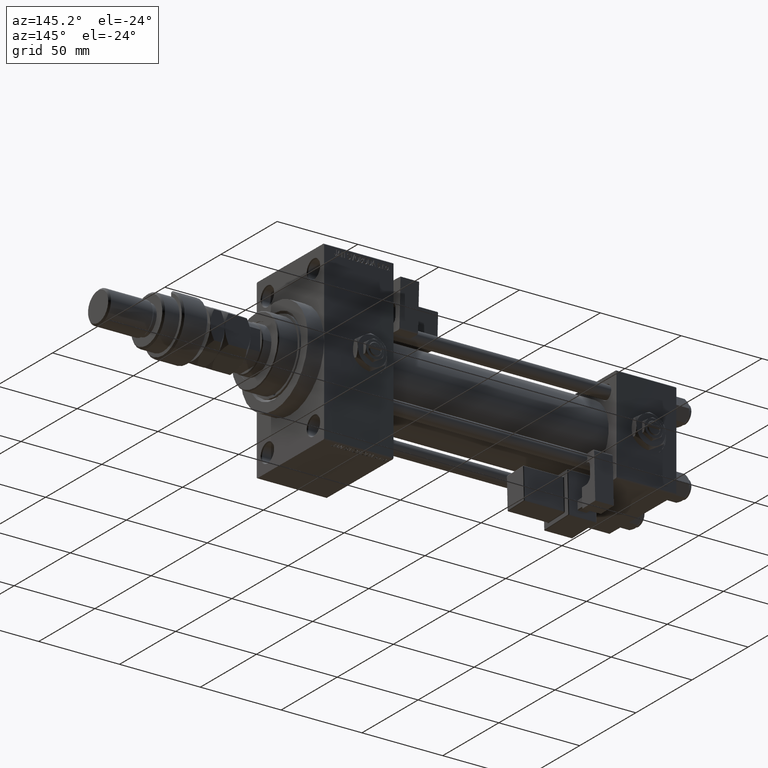
[diagram: clean part render]
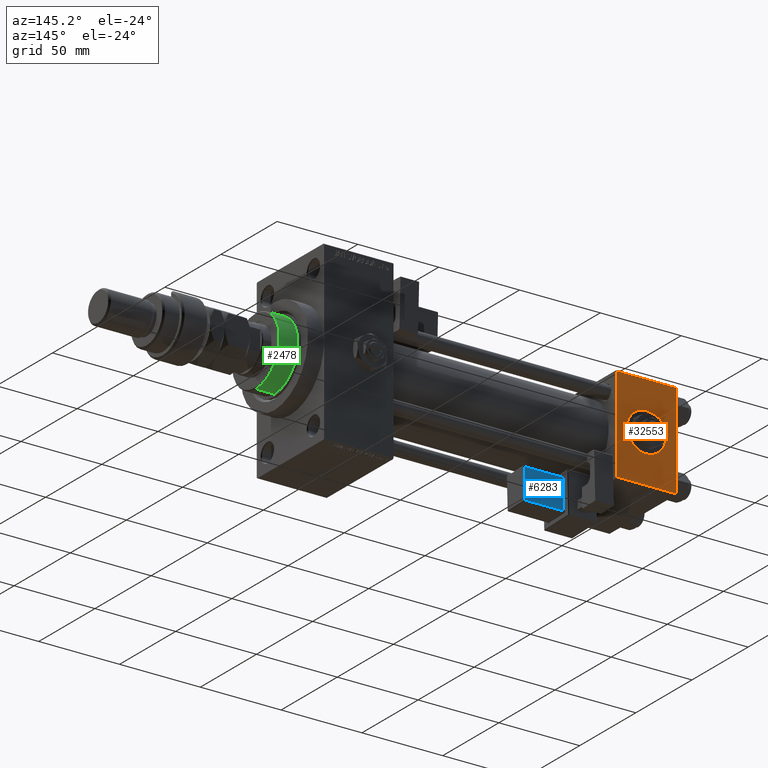
[diagram: same view with three faces highlighted in distinct colors, each labeled with its STEP entity id]
A machine part, auxiliary view with three faces highlighted in distinct colors.
Their STEP definitions:

[orange] entity #32553 — the highlighted planar face has unit normal (0, 1, 0).
#98 = DIRECTION ( 'NONE',  ( 0.000000000000000000, 1.000000000000000000, 0.000000000000000000 ) ) ;
#560 = VECTOR ( 'NONE', #51329, 1000.000000000000000 ) ;
#1037 = LINE ( 'NONE', #34199, #560 ) ;
#1789 = DIRECTION ( 'NONE',  ( 0.000000000000000000, 0.000000000000000000, -1.000000000000000000 ) ) ;
#2069 = EDGE_CURVE ( 'NONE', #27069, #35898, #9251, .T. ) ;
#2452 = VERTEX_POINT ( 'NONE', #32869 ) ;
#4381 = CARTESIAN_POINT ( 'NONE',  ( 18.50000000000000000, 29.99999999999999289, -12.00000000000000178 ) ) ;
#4445 = LINE ( 'NONE', #13281, #12027 ) ;
#7299 = EDGE_CURVE ( 'NONE', #40961, #7835, #4445, .T. ) ;
#7835 = VERTEX_POINT ( 'NONE', #20084 ) ;
#8877 = CARTESIAN_POINT ( 'NONE',  ( 37.00000000000000000, 29.99999999999999289, 30.00000000000000000 ) ) ;
#9251 = CIRCLE ( 'NONE', #40139, 12.00000000000000178 ) ;
#9419 = DIRECTION ( 'NONE',  ( 0.000000000000000000, -0.000000000000000000, 1.000000000000000000 ) ) ;
#12027 = VECTOR ( 'NONE', #46711, 1000.000000000000000 ) ;
#12384 = ORIENTED_EDGE ( 'NONE', *, *, #27655, .T. ) ;
#12758 = FACE_OUTER_BOUND ( 'NONE', #43283, .T. ) ;
#12764 = CIRCLE ( 'NONE', #22458, 12.00000000000000178 ) ;
#13164 = CARTESIAN_POINT ( 'NONE',  ( 18.50000000000000000, 29.99999999999999289, 0.000000000000000000 ) ) ;
#13281 = CARTESIAN_POINT ( 'NONE',  ( 0.000000000000000000, 29.99999999999999289, 30.00000000000000000 ) ) ;
#18111 = EDGE_CURVE ( 'NONE', #40961, #2452, #50096, .T. ) ;
#20084 = CARTESIAN_POINT ( 'NONE',  ( 0.000000000000000000, 29.99999999999999289, -29.50000000000000000 ) ) ;
#22036 = ORIENTED_EDGE ( 'NONE', *, *, #48111, .T. ) ;
#22358 = CARTESIAN_POINT ( 'NONE',  ( 0.000000000000000000, 29.99999999999999289, 29.50000000000000000 ) ) ;
#22458 = AXIS2_PLACEMENT_3D ( 'NONE', #47581, #98, #43175 ) ;
#25136 = ORIENTED_EDGE ( 'NONE', *, *, #26826, .F. ) ;
#26384 = DIRECTION ( 'NONE',  ( 0.000000000000000000, 0.000000000000000000, 1.000000000000000000 ) ) ;
#26826 = EDGE_CURVE ( 'NONE', #35898, #27069, #12764, .T. ) ;
#27069 = VERTEX_POINT ( 'NONE', #4381 ) ;
#27655 = EDGE_CURVE ( 'NONE', #2452, #28456, #48749, .T. ) ;
#28242 = ORIENTED_EDGE ( 'NONE', *, *, #2069, .F. ) ;
#28456 = VERTEX_POINT ( 'NONE', #49720 ) ;
#29605 = FACE_BOUND ( 'NONE', #42665, .T. ) ;
#30006 = DIRECTION ( 'NONE',  ( 0.000000000000000000, 1.000000000000000000, 0.000000000000000000 ) ) ;
#32410 = DIRECTION ( 'NONE',  ( 1.000000000000000000, 0.000000000000000000, 0.000000000000000000 ) ) ;
#32553 = ADVANCED_FACE ( 'NONE', ( #29605, #12758 ), #46732, .T. ) ;
#32869 = CARTESIAN_POINT ( 'NONE',  ( 37.00000000000000000, 29.99999999999999289, 29.50000000000000000 ) ) ;
#34199 = CARTESIAN_POINT ( 'NONE',  ( 37.00000000000000000, 29.99999999999999289, -29.50000000000000000 ) ) ;
#35898 = VERTEX_POINT ( 'NONE', #38289 ) ;
#36019 = ORIENTED_EDGE ( 'NONE', *, *, #7299, .F. ) ;
#36586 = CARTESIAN_POINT ( 'NONE',  ( 37.00000000000000000, 29.99999999999999289, 30.00000000000000000 ) ) ;
#37307 = ORIENTED_EDGE ( 'NONE', *, *, #18111, .T. ) ;
#37492 = VECTOR ( 'NONE', #1789, 1000.000000000000000 ) ;
#38289 = CARTESIAN_POINT ( 'NONE',  ( 18.50000000000000000, 29.99999999999999289, 12.00000000000000178 ) ) ;
#40139 = AXIS2_PLACEMENT_3D ( 'NONE', #13164, #30006, #26384 ) ;
#40961 = VERTEX_POINT ( 'NONE', #22358 ) ;
#42665 = EDGE_LOOP ( 'NONE', ( #25136, #28242 ) ) ;
#42848 = AXIS2_PLACEMENT_3D ( 'NONE', #8877, #51157, #9419 ) ;
#43175 = DIRECTION ( 'NONE',  ( 0.000000000000000000, 0.000000000000000000, 1.000000000000000000 ) ) ;
#43283 = EDGE_LOOP ( 'NONE', ( #12384, #22036, #36019, #37307 ) ) ;
#45945 = CARTESIAN_POINT ( 'NONE',  ( 37.00000000000000000, 29.99999999999999289, 29.50000000000000000 ) ) ;
#46711 = DIRECTION ( 'NONE',  ( 0.000000000000000000, 0.000000000000000000, -1.000000000000000000 ) ) ;
#46732 = PLANE ( 'NONE',  #42848 ) ;
#47581 = CARTESIAN_POINT ( 'NONE',  ( 18.50000000000000000, 29.99999999999999289, 0.000000000000000000 ) ) ;
#47789 = VECTOR ( 'NONE', #32410, 1000.000000000000000 ) ;
#48111 = EDGE_CURVE ( 'NONE', #28456, #7835, #1037, .T. ) ;
#48749 = LINE ( 'NONE', #36586, #37492 ) ;
#49720 = CARTESIAN_POINT ( 'NONE',  ( 37.00000000000000000, 29.99999999999999289, -29.50000000000000000 ) ) ;
#50096 = LINE ( 'NONE', #45945, #47789 ) ;
#51157 = DIRECTION ( 'NONE',  ( -0.000000000000000000, 1.000000000000000000, 0.000000000000000000 ) ) ;
#51329 = DIRECTION ( 'NONE',  ( -1.000000000000000000, 0.000000000000000000, 0.000000000000000000 ) ) ;

[blue] entity #6283 — the highlighted planar face has unit normal (0, -0.9994, -0.0353).
#3614 = CARTESIAN_POINT ( 'NONE',  ( 9.250000000000001776, -17.24999999999999289, 21.50000000000000355 ) ) ;
#6283 = ADVANCED_FACE ( 'NONE', ( #49766 ), #49231, .F. ) ;
#9731 = VERTEX_POINT ( 'NONE', #26797 ) ;
#11116 = AXIS2_PLACEMENT_3D ( 'NONE', #40653, #45342, #53357 ) ;
#13057 = VECTOR ( 'NONE', #24703, 1000.000000000000000 ) ;
#14332 = VERTEX_POINT ( 'NONE', #3614 ) ;
#14688 = VERTEX_POINT ( 'NONE', #31674 ) ;
#15159 = ORIENTED_EDGE ( 'NONE', *, *, #52420, .T. ) ;
#16620 = VECTOR ( 'NONE', #24142, 1000.000000000000000 ) ;
#19033 = LINE ( 'NONE', #44721, #50654 ) ;
#20566 = CARTESIAN_POINT ( 'NONE',  ( 9.250000000000001776, -17.24999999999999289, 22.00000000000000711 ) ) ;
#20570 = DIRECTION ( 'NONE',  ( 1.000000000000000000, -0.000000000000000000, 1.334402673828313339E-16 ) ) ;
#22192 = EDGE_CURVE ( 'NONE', #14332, #14688, #46524, .T. ) ;
#24142 = DIRECTION ( 'NONE',  ( -1.000000000000000000, 0.000000000000000000, -1.334402673828313339E-16 ) ) ;
#24703 = DIRECTION ( 'NONE',  ( -1.334402673828313339E-16, 0.000000000000000000, 1.000000000000000000 ) ) ;
#26797 = CARTESIAN_POINT ( 'NONE',  ( 9.250000000000005329, -17.24999999999999289, 2.500000000000005773 ) ) ;
#28839 = LINE ( 'NONE', #20566, #13057 ) ;
#29662 = CARTESIAN_POINT ( 'NONE',  ( 33.75000000000000000, -17.24999999999999289, 21.50000000000000711 ) ) ;
#30364 = EDGE_LOOP ( 'NONE', ( #15159, #50986, #35737, #45321 ) ) ;
#30957 = CARTESIAN_POINT ( 'NONE',  ( 33.25000000000000000, -17.24999999999999289, 2.500000000000009326 ) ) ;
#31674 = CARTESIAN_POINT ( 'NONE',  ( 33.25000000000000000, -17.24999999999999289, 21.50000000000000711 ) ) ;
#32567 = VERTEX_POINT ( 'NONE', #30957 ) ;
#35737 = ORIENTED_EDGE ( 'NONE', *, *, #22192, .T. ) ;
#39031 = VECTOR ( 'NONE', #20570, 1000.000000000000000 ) ;
#40653 = CARTESIAN_POINT ( 'NONE',  ( 33.75000000000000000, -17.24999999999999289, 22.00000000000001066 ) ) ;
#40998 = LINE ( 'NONE', #45426, #16620 ) ;
#41029 = EDGE_CURVE ( 'NONE', #14688, #32567, #19033, .T. ) ;
#44721 = CARTESIAN_POINT ( 'NONE',  ( 33.25000000000000000, -17.24999999999999289, 2.000000000000010214 ) ) ;
#45321 = ORIENTED_EDGE ( 'NONE', *, *, #41029, .T. ) ;
#45342 = DIRECTION ( 'NONE',  ( 0.000000000000000000, -1.000000000000000000, 0.000000000000000000 ) ) ;
#45426 = CARTESIAN_POINT ( 'NONE',  ( 33.75000000000000000, -17.24999999999999289, 2.500000000000009326 ) ) ;
#46524 = LINE ( 'NONE', #29662, #39031 ) ;
#49231 = PLANE ( 'NONE',  #11116 ) ;
#49766 = FACE_OUTER_BOUND ( 'NONE', #30364, .T. ) ;
#50654 = VECTOR ( 'NONE', #53020, 1000.000000000000000 ) ;
#50986 = ORIENTED_EDGE ( 'NONE', *, *, #51691, .T. ) ;
#51691 = EDGE_CURVE ( 'NONE', #9731, #14332, #28839, .T. ) ;
#52420 = EDGE_CURVE ( 'NONE', #32567, #9731, #40998, .T. ) ;
#53020 = DIRECTION ( 'NONE',  ( 1.734723475976807587E-16, -0.000000000000000000, -1.000000000000000000 ) ) ;
#53357 = DIRECTION ( 'NONE',  ( 0.000000000000000000, -0.000000000000000000, -1.000000000000000000 ) ) ;

[green] entity #2478 — the highlighted cylindrical surface (partial cylindrical patch) has radius 21 mm, axis along (-1, 0, 0).
#149 = VERTEX_POINT ( 'NONE', #2533 ) ;
#2478 = ADVANCED_FACE ( 'NONE', ( #3306 ), #41157, .T. ) ;
#2533 = CARTESIAN_POINT ( 'NONE',  ( -20.96385542168674831, -1.231570484631382412, 43.25999999999999801 ) ) ;
#2627 = VERTEX_POINT ( 'NONE', #4662 ) ;
#3306 = FACE_OUTER_BOUND ( 'NONE', #46568, .T. ) ;
#3446 = VERTEX_POINT ( 'NONE', #38795 ) ;
#3904 = DIRECTION ( 'NONE',  ( -0.000000000000000000, -0.000000000000000000, -1.000000000000000000 ) ) ;
#4662 = CARTESIAN_POINT ( 'NONE',  ( -21.00000000000000000, 0.000000000000000000, 43.25999999999999801 ) ) ;
#6385 = EDGE_CURVE ( 'NONE', #2627, #149, #20830, .T. ) ;
#8851 = CARTESIAN_POINT ( 'NONE',  ( 0.000000000000000000, 0.000000000000000000, 43.25999999999999801 ) ) ;
#10328 = EDGE_CURVE ( 'NONE', #53908, #45773, #24567, .T. ) ;
#11928 = LINE ( 'NONE', #32656, #22304 ) ;
#12726 = DIRECTION ( 'NONE',  ( 1.000000000000000000, 0.000000000000000000, 0.000000000000000000 ) ) ;
#12804 = AXIS2_PLACEMENT_3D ( 'NONE', #30193, #29926, #47592 ) ;
#15201 = EDGE_CURVE ( 'NONE', #3446, #2627, #32849, .T. ) ;
#16042 = DIRECTION ( 'NONE',  ( 1.000000000000000000, 0.000000000000000000, 0.000000000000000000 ) ) ;
#18387 = ORIENTED_EDGE ( 'NONE', *, *, #27828, .T. ) ;
#20041 = DIRECTION ( 'NONE',  ( 1.000000000000000000, 0.000000000000000000, 0.000000000000000000 ) ) ;
#20128 = ORIENTED_EDGE ( 'NONE', *, *, #23074, .F. ) ;
#20192 = DIRECTION ( 'NONE',  ( 0.000000000000000000, 0.000000000000000000, 1.000000000000000000 ) ) ;
#20830 = CIRCLE ( 'NONE', #51698, 21.00000000000000000 ) ;
#21702 = AXIS2_PLACEMENT_3D ( 'NONE', #48657, #20192, #16042 ) ;
#22304 = VECTOR ( 'NONE', #3904, 1000.000000000000000 ) ;
#23074 = EDGE_CURVE ( 'NONE', #25146, #45773, #11928, .T. ) ;
#23762 = DIRECTION ( 'NONE',  ( -1.000000000000000000, 0.000000000000000000, 0.000000000000000000 ) ) ;
#24567 = CIRCLE ( 'NONE', #52769, 21.00000000000000000 ) ;
#24726 = CARTESIAN_POINT ( 'NONE',  ( 0.000000000000000000, 0.000000000000000000, 43.25999999999999801 ) ) ;
#25146 = VERTEX_POINT ( 'NONE', #53679 ) ;
#25671 = ORIENTED_EDGE ( 'NONE', *, *, #44901, .T. ) ;
#25693 = DIRECTION ( 'NONE',  ( 0.000000000000000000, 0.000000000000000000, 1.000000000000000000 ) ) ;
#26348 = CARTESIAN_POINT ( 'NONE',  ( 21.00000000000000000, 2.571758278209441661E-15, 43.25999999999999801 ) ) ;
#27828 = EDGE_CURVE ( 'NONE', #25146, #3446, #41025, .T. ) ;
#29926 = DIRECTION ( 'NONE',  ( 0.000000000000000000, 0.000000000000000000, -1.000000000000000000 ) ) ;
#30193 = CARTESIAN_POINT ( 'NONE',  ( 0.000000000000000000, 0.000000000000000000, 54.75999999999999091 ) ) ;
#32656 = CARTESIAN_POINT ( 'NONE',  ( 21.00000000000000000, 2.571758278209441661E-15, 55.26000000000000512 ) ) ;
#32684 = VECTOR ( 'NONE', #53301, 1000.000000000000000 ) ;
#32849 = LINE ( 'NONE', #41137, #32684 ) ;
#37019 = CARTESIAN_POINT ( 'NONE',  ( 0.000000000000000000, 0.000000000000000000, 55.26000000000000512 ) ) ;
#37399 = ORIENTED_EDGE ( 'NONE', *, *, #15201, .T. ) ;
#38795 = CARTESIAN_POINT ( 'NONE',  ( -21.00000000000000000, 0.000000000000000000, 54.75999999999999091 ) ) ;
#40616 = DIRECTION ( 'NONE',  ( -0.000000000000000000, -0.000000000000000000, -1.000000000000000000 ) ) ;
#41025 = CIRCLE ( 'NONE', #12804, 21.00000000000000000 ) ;
#41095 = CIRCLE ( 'NONE', #21702, 21.00000000000000000 ) ;
#41137 = CARTESIAN_POINT ( 'NONE',  ( -21.00000000000000000, 0.000000000000000000, 55.26000000000000512 ) ) ;
#41157 = CYLINDRICAL_SURFACE ( 'NONE', #43730, 21.00000000000000000 ) ;
#41206 = ORIENTED_EDGE ( 'NONE', *, *, #6385, .T. ) ;
#42253 = CARTESIAN_POINT ( 'NONE',  ( 20.96385542168674831, -1.231570484631382412, 43.25999999999999801 ) ) ;
#43730 = AXIS2_PLACEMENT_3D ( 'NONE', #37019, #40616, #23762 ) ;
#44901 = EDGE_CURVE ( 'NONE', #149, #53908, #41095, .T. ) ;
#45147 = ORIENTED_EDGE ( 'NONE', *, *, #10328, .T. ) ;
#45773 = VERTEX_POINT ( 'NONE', #26348 ) ;
#46568 = EDGE_LOOP ( 'NONE', ( #20128, #18387, #37399, #41206, #25671, #45147 ) ) ;
#47592 = DIRECTION ( 'NONE',  ( 1.000000000000000000, 0.000000000000000000, 0.000000000000000000 ) ) ;
#48657 = CARTESIAN_POINT ( 'NONE',  ( 0.000000000000000000, 0.000000000000000000, 43.25999999999999801 ) ) ;
#49606 = DIRECTION ( 'NONE',  ( 0.000000000000000000, 0.000000000000000000, 1.000000000000000000 ) ) ;
#51698 = AXIS2_PLACEMENT_3D ( 'NONE', #8851, #25693, #12726 ) ;
#52769 = AXIS2_PLACEMENT_3D ( 'NONE', #24726, #49606, #20041 ) ;
#53301 = DIRECTION ( 'NONE',  ( -0.000000000000000000, -0.000000000000000000, -1.000000000000000000 ) ) ;
#53679 = CARTESIAN_POINT ( 'NONE',  ( 21.00000000000000000, 2.571758278209441661E-15, 54.75999999999999091 ) ) ;
#53908 = VERTEX_POINT ( 'NONE', #42253 ) ;